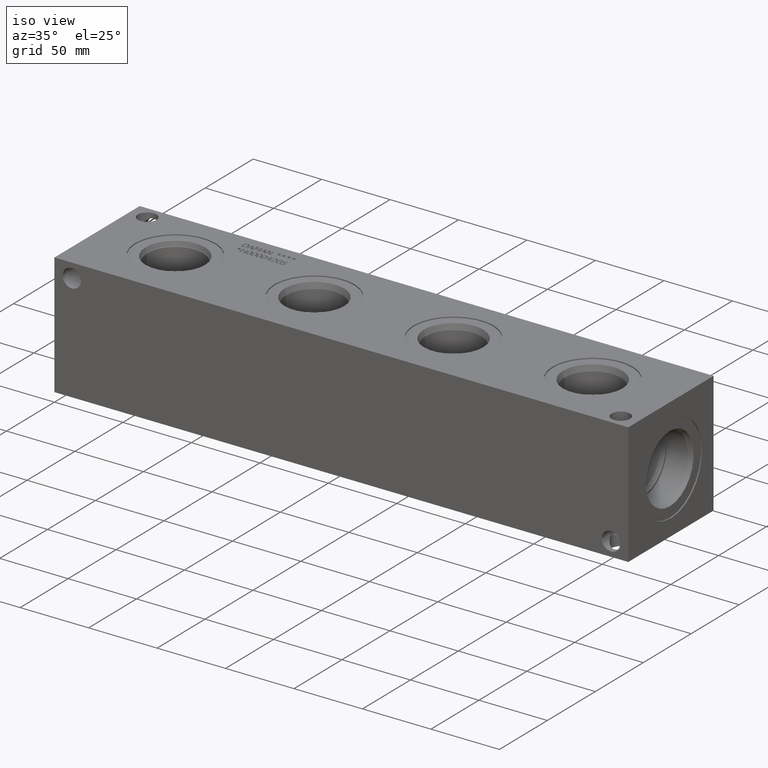
[diagram: clean part render]
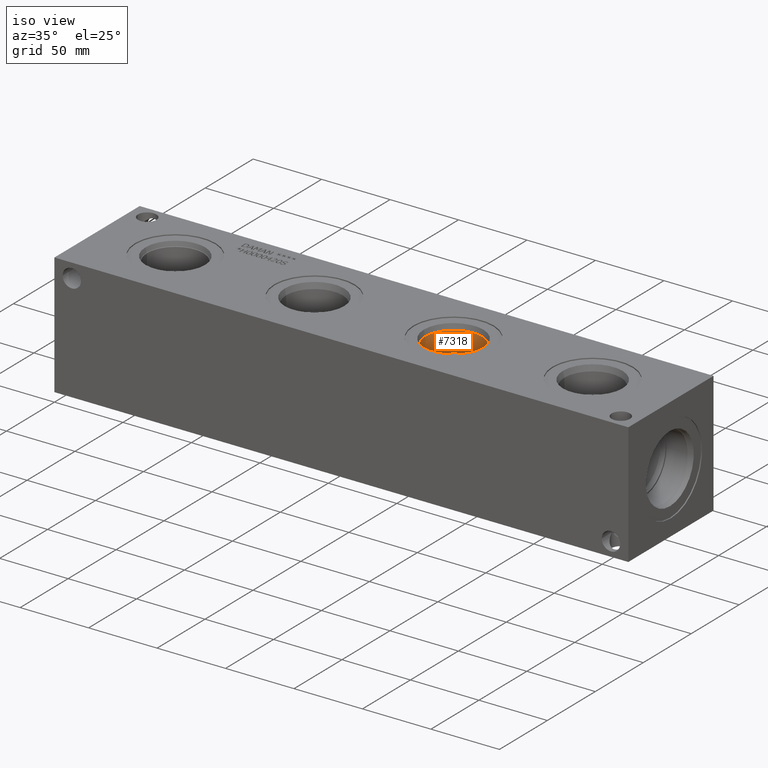
[diagram: same view with one face highlighted and labeled with its STEP entity id]
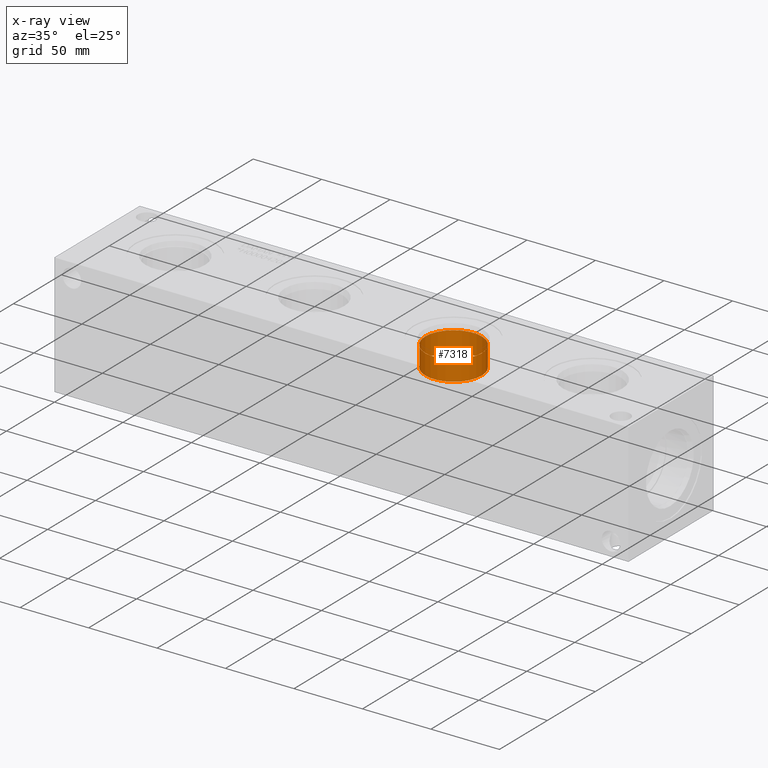
[diagram: x-ray of the same camera — body ghosted, the highlighted face saturated]
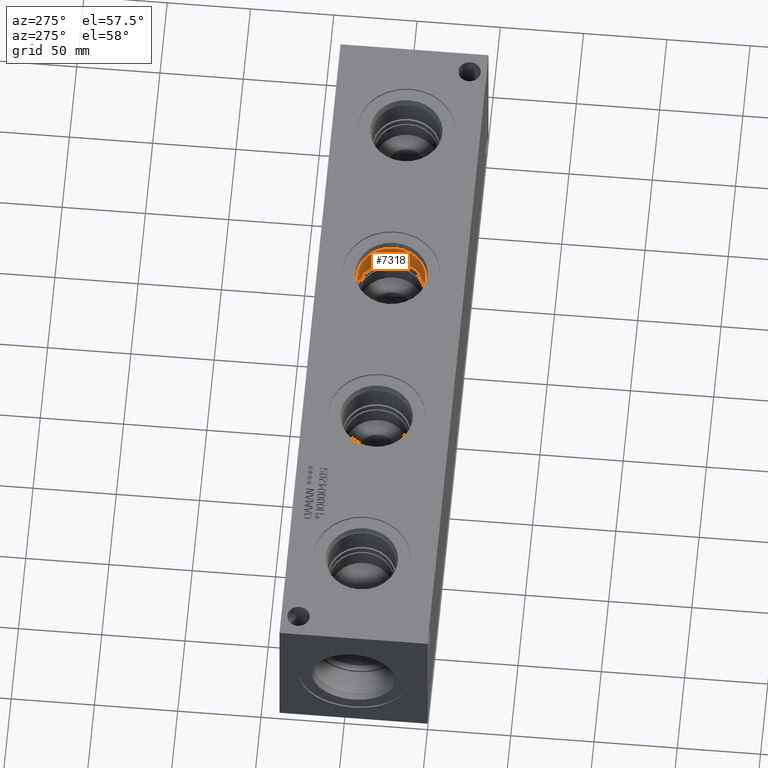
[diagram: same view with one face highlighted and labeled with its STEP entity id]
A machine part, iso view. The second image highlights one B-rep face of the part: STEP entity #7318.
The next image is the same camera in x-ray: the body ghosted, the highlighted face saturated — about 0% of this face is hidden behind the body in this view.
A second angle (auxiliary view) of the same face is appended — the face is thin or edge-on in the first view.
In plain terms, the highlighted cylindrical surface (bore or boss wall) has radius 20.6375 mm, axis along (0, 0, 1).
Its self-contained STEP definition (entity closure, byte-faithful):
#65=CYLINDRICAL_SURFACE('',#7696,20.6375);
#152=CIRCLE('',#7693,20.6375);
#153=CIRCLE('',#7694,20.6375);
#155=CIRCLE('',#7697,20.6375);
#875=FACE_OUTER_BOUND('',#1292,.T.);
#1292=EDGE_LOOP('',(#6266,#6267,#6268,#6269,#6270));
#2010=LINE('',#12435,#2708);
#2708=VECTOR('',#9094,20.6375);
#3369=VERTEX_POINT('',#12426);
#3370=VERTEX_POINT('',#12427);
#3372=VERTEX_POINT('',#12433);
#4354=EDGE_CURVE('',#3369,#3370,#152,.T.);
#4355=EDGE_CURVE('',#3370,#3369,#153,.T.);
#4357=EDGE_CURVE('',#3372,#3372,#155,.T.);
#4358=EDGE_CURVE('',#3372,#3370,#2010,.T.);
#6266=ORIENTED_EDGE('',*,*,#4357,.F.);
#6267=ORIENTED_EDGE('',*,*,#4358,.T.);
#6268=ORIENTED_EDGE('',*,*,#4354,.F.);
#6269=ORIENTED_EDGE('',*,*,#4355,.F.);
#6270=ORIENTED_EDGE('',*,*,#4358,.F.);
#7318=ADVANCED_FACE('',(#875),#65,.F.);
#7693=AXIS2_PLACEMENT_3D('',#12428,#9084,#9085);
#7694=AXIS2_PLACEMENT_3D('',#12429,#9086,#9087);
#7696=AXIS2_PLACEMENT_3D('',#12432,#9090,#9091);
#7697=AXIS2_PLACEMENT_3D('',#12434,#9092,#9093);
#9084=DIRECTION('center_axis',(0.,0.,1.));
#9085=DIRECTION('ref_axis',(1.,0.,0.));
#9086=DIRECTION('center_axis',(0.,0.,1.));
#9087=DIRECTION('ref_axis',(1.,0.,0.));
#9090=DIRECTION('center_axis',(0.,0.,1.));
#9091=DIRECTION('ref_axis',(1.,0.,0.));
#9092=DIRECTION('center_axis',(0.,0.,-1.));
#9093=DIRECTION('ref_axis',(1.,0.,0.));
#9094=DIRECTION('',(0.,0.,-1.));
#12426=CARTESIAN_POINT('',(280.9875,44.45,69.0626));
#12427=CARTESIAN_POINT('',(239.7125,44.45,69.0626));
#12428=CARTESIAN_POINT('Origin',(260.35,44.45,69.0626));
#12429=CARTESIAN_POINT('Origin',(260.35,44.45,69.0626));
#12432=CARTESIAN_POINT('Origin',(260.35,44.45,78.9813));
#12433=CARTESIAN_POINT('',(239.7125,44.45,83.929000017461));
#12434=CARTESIAN_POINT('Origin',(260.35,44.45,83.929000017461));
#12435=CARTESIAN_POINT('',(239.7125,44.45,78.9813));